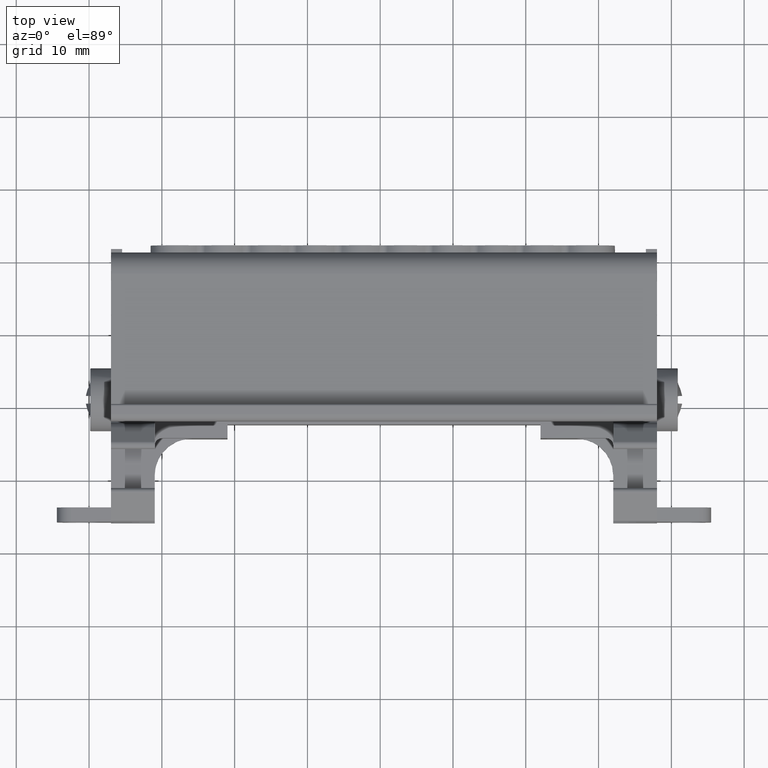
[diagram: clean part render]
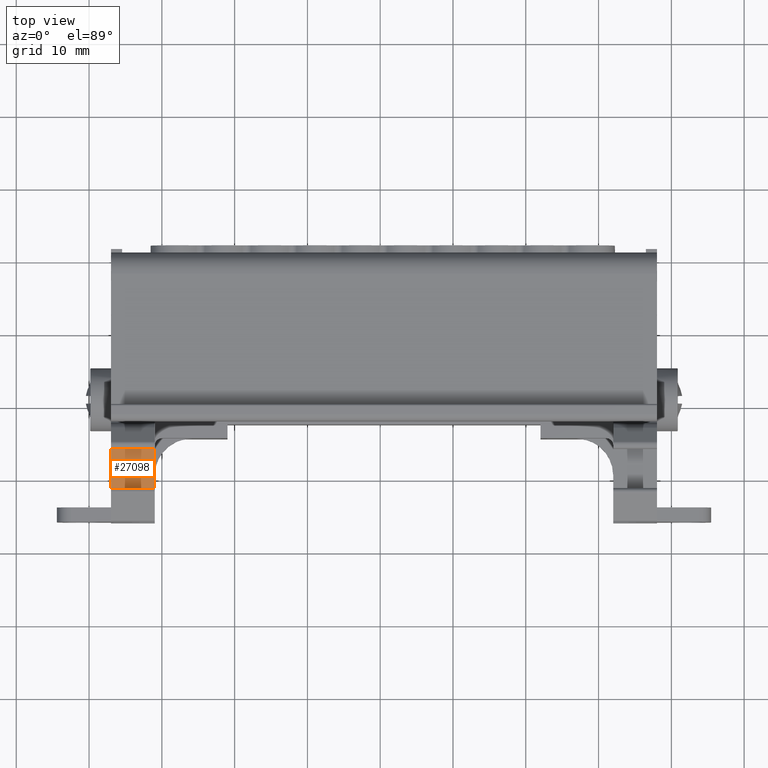
[diagram: same view with one face highlighted and labeled with its STEP entity id]
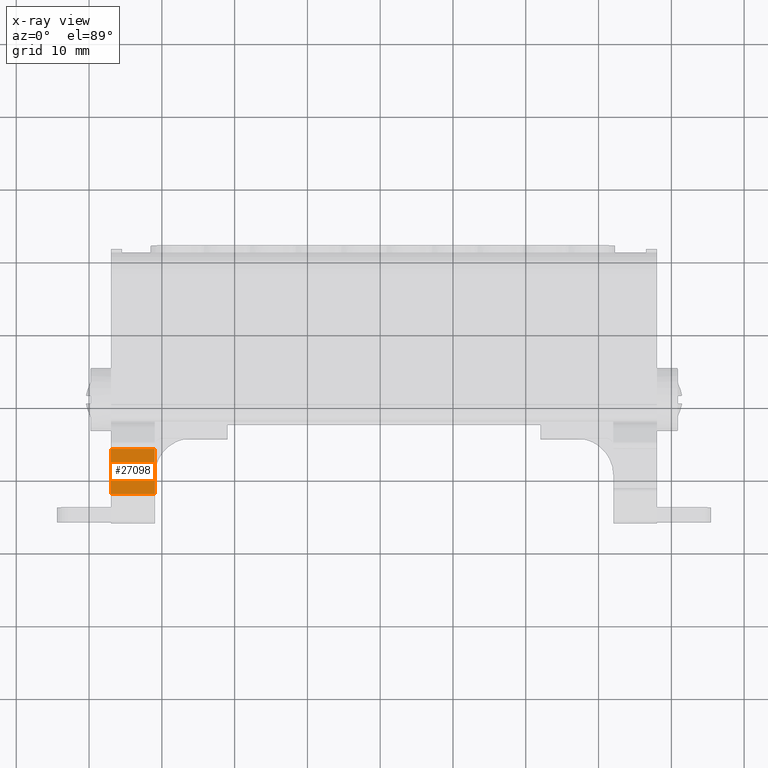
[diagram: x-ray of the same camera — body ghosted, the highlighted face saturated]
A machine part, top view. The second image highlights one B-rep face of the part: STEP entity #27098.
The next image is the same camera in x-ray: the body ghosted, the highlighted face saturated — about 0% of this face is hidden behind the body in this view.
In plain terms, the highlighted planar face has unit normal (0, 0, -1).
Its self-contained STEP definition (entity closure, byte-faithful):
#467 = VECTOR ( 'NONE', #11211, 1000.000000000000000 ) ;
#1774 = B_SPLINE_CURVE_WITH_KNOTS ( 'NONE', 3,
 ( #4698, #4668, #4661, #4693 ),
 .UNSPECIFIED., .F., .F.,
 ( 4, 4 ),
 ( 0.0000000000000000000, 1.000000000000000000 ),
 .UNSPECIFIED. ) ;
#3474 = EDGE_LOOP ( 'NONE', ( #6411, #6528, #6428, #6426 ) ) ;
#4661 = CARTESIAN_POINT ( 'NONE',  ( -266.9794392833572900, -128.0444276118194000, 150.4467489320295500 ) ) ;
#4668 = CARTESIAN_POINT ( 'NONE',  ( -266.9794392833572400, -130.1158562615313500, 150.4467489320295500 ) ) ;
#4693 = CARTESIAN_POINT ( 'NONE',  ( -266.9794392833572400, -125.9729989621074500, 150.4467489320295800 ) ) ;
#4698 = CARTESIAN_POINT ( 'NONE',  ( -266.9794392833572400, -132.1872849112433200, 150.4467489320295500 ) ) ;
#6411 = ORIENTED_EDGE ( 'NONE', *, *, #31459, .F. ) ;
#6426 = ORIENTED_EDGE ( 'NONE', *, *, #22459, .F. ) ;
#6428 = ORIENTED_EDGE ( 'NONE', *, *, #27695, .F. ) ;
#6528 = ORIENTED_EDGE ( 'NONE', *, *, #41378, .F. ) ;
#9308 = CARTESIAN_POINT ( 'NONE',  ( -266.9794392833572900, -122.8222836459882100, 150.4467489320295500 ) ) ;
#9310 = FACE_OUTER_BOUND ( 'NONE', #3474, .T. ) ;
#9311 = DIRECTION ( 'NONE',  ( 2.537798099621990400E-015, 2.833082438803083800E-029, -1.000000000000000000 ) ) ;
#9313 = PLANE ( 'NONE',  #30116 ) ;
#9350 = DIRECTION ( 'NONE',  ( -1.000000000000000000, 0.0000000000000000000, -2.537798099621990400E-015 ) ) ;
#11158 = CARTESIAN_POINT ( 'NONE',  ( -260.9794392833571800, -122.8222836459882100, 150.4467489320295800 ) ) ;
#11194 = LINE ( 'NONE', #11158, #467 ) ;
#11211 = DIRECTION ( 'NONE',  ( 7.189791229266899800E-044, -1.000000000000000000, -2.833082438803083800E-029 ) ) ;
#17040 = CARTESIAN_POINT ( 'NONE',  ( -266.9794392833572400, -125.9729989621074500, 150.4467489320295800 ) ) ;
#17050 = CARTESIAN_POINT ( 'NONE',  ( -266.9794392833572400, -132.1872849112433200, 150.4467489320295500 ) ) ;
#17071 = CARTESIAN_POINT ( 'NONE',  ( -260.9794392833571800, -125.9729988122005000, 150.4467489320295800 ) ) ;
#17087 = CARTESIAN_POINT ( 'NONE',  ( -260.9794392833571200, -132.1872849112433000, 150.4467489320295800 ) ) ;
#19530 = VERTEX_POINT ( 'NONE', #17050 ) ;
#19543 = VERTEX_POINT ( 'NONE', #17040 ) ;
#19586 = VERTEX_POINT ( 'NONE', #17071 ) ;
#19593 = VERTEX_POINT ( 'NONE', #17087 ) ;
#22459 = EDGE_CURVE ( 'NONE', #19586, #19593, #11194, .T. ) ;
#23324 = CARTESIAN_POINT ( 'NONE',  ( -266.9794392833572900, -125.9729989621074300, 150.4467489320295500 ) ) ;
#23335 = DIRECTION ( 'NONE',  ( 1.000000000000000000, -0.0000000000000000000, 2.537798099621990400E-015 ) ) ;
#23337 = LINE ( 'NONE', #23324, #29579 ) ;
#27098 = ADVANCED_FACE ( 'NONE', ( #9310 ), #9313, .F. ) ;
#27695 = EDGE_CURVE ( 'NONE', #19593, #19530, #36076, .T. ) ;
#29579 = VECTOR ( 'NONE', #23335, 1000.000000000000000 ) ;
#30116 = AXIS2_PLACEMENT_3D ( 'NONE', #9308, #9311, #9350 ) ;
#30148 = VECTOR ( 'NONE', #36078, 1000.000000000000000 ) ;
#31459 = EDGE_CURVE ( 'NONE', #19543, #19586, #23337, .T. ) ;
#36047 = CARTESIAN_POINT ( 'NONE',  ( -266.9794392833572900, -132.1872849112433000, 150.4467489320295500 ) ) ;
#36076 = LINE ( 'NONE', #36047, #30148 ) ;
#36078 = DIRECTION ( 'NONE',  ( -1.000000000000000000, 0.0000000000000000000, -2.537798099621990400E-015 ) ) ;
#41378 = EDGE_CURVE ( 'NONE', #19530, #19543, #1774, .T. ) ;